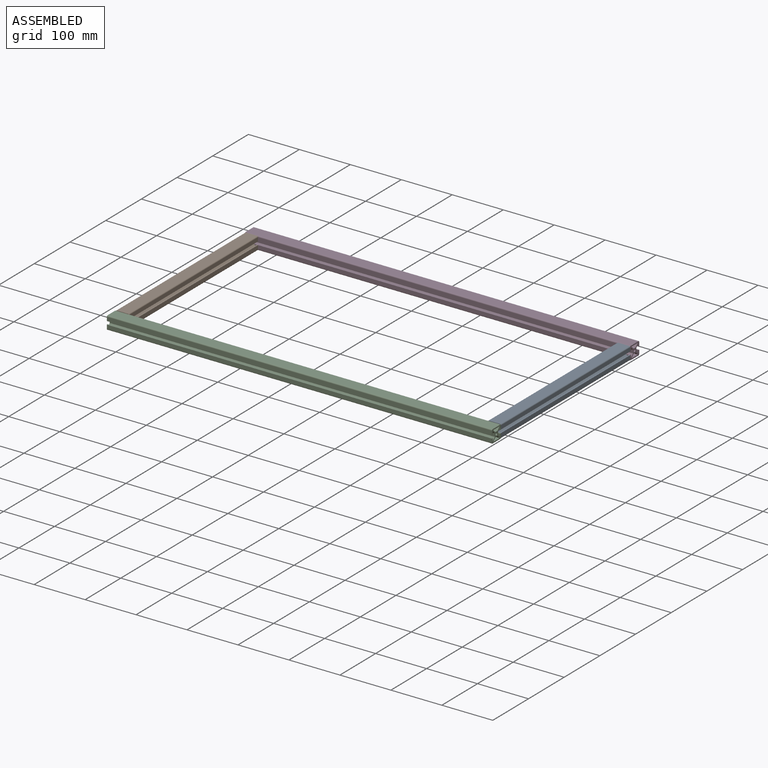
[diagram: assembled view]
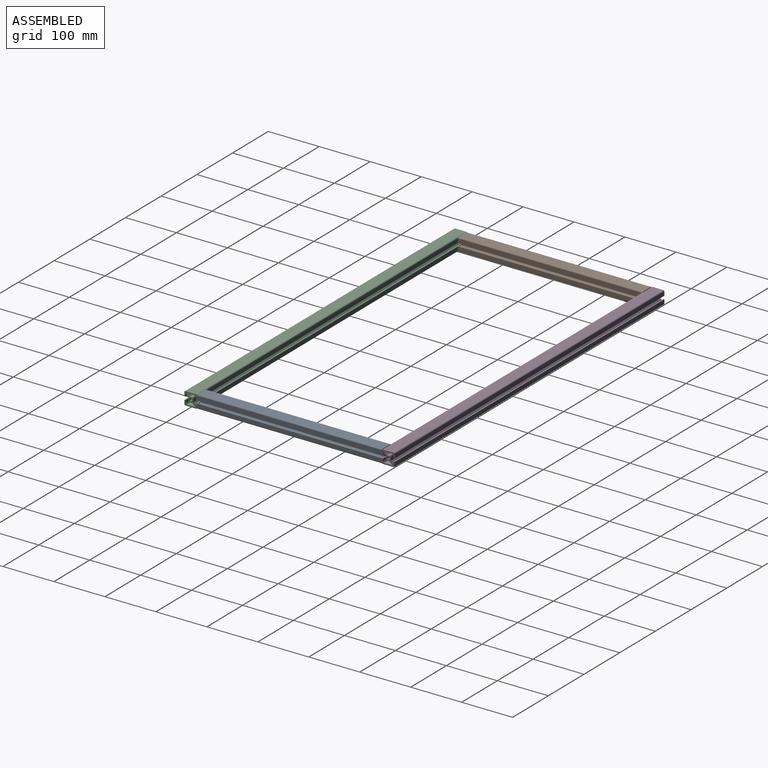
[diagram: assembled view, second angle]
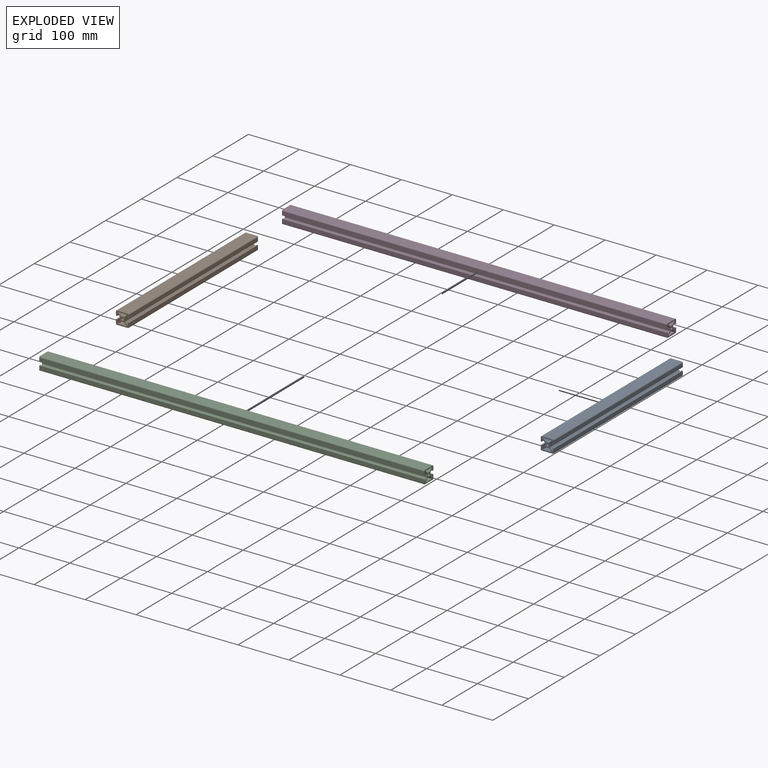
[diagram: exploded view]
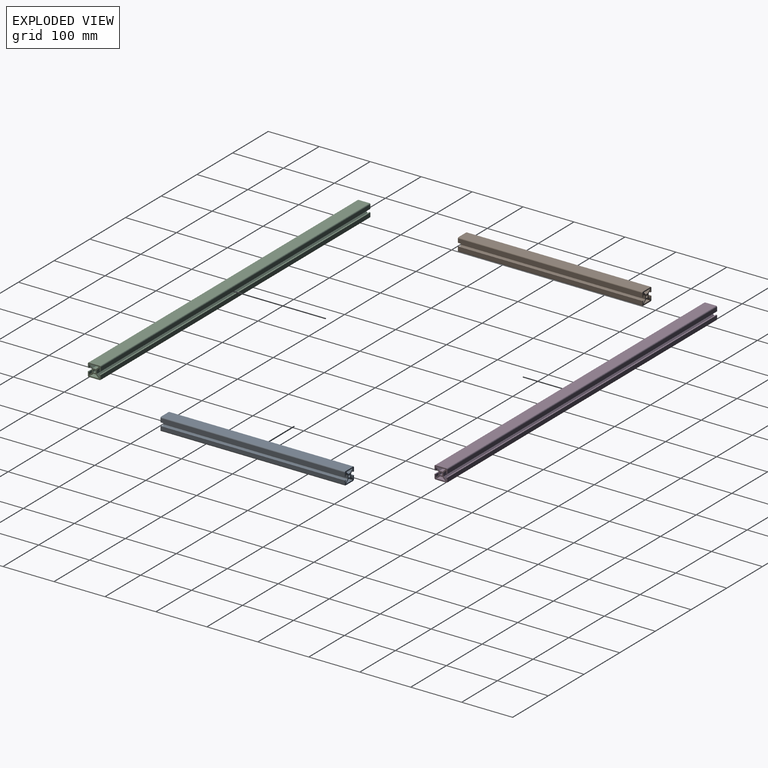
[diagram: exploded view, second angle]
ASSEMBLY  parts=4 mates=9
PART A: 35 faces, bbox 25.4x25.4x362 mm
  f0: plane 361.95x21.34mm, normal (1,0,0), area 7722.6mm2, adj f2,f28,f32,f34
  f1: plane 361.95x17.6mm, normal (-1,0,0), area 6370.8mm2, adj f2,f5,f24,f34
  f2: plane 25.4x25.4mm, normal (0,0,-1), area 321.8mm2, adj f0,f1,f3,f4,f5,f6,f7,f8
  f3: plane 361.95x2.34mm, normal (-1,0,0), area 845.8mm2, adj f2,f23,f27,f34
  f4: plane 361.95x6.37mm, normal (1,0,0), area 2307.2mm2, adj f2,f5,f24,f34
  f5: plane 361.95x5.61mm, normal (0.71,-0.71,0), area 2873.4mm2, adj f1,f2,f4,f34
  f6: cylinder r=2.55mm len=361.95mm, axis (0,0,1), area 5805.3mm2, adj f2,f34
  f7: plane 361.95x5.61mm, normal (0.71,0.71,0), area 2873.4mm2, adj f2,f16,f30,f34
  f8: plane 361.95x6.37mm, normal (-1,0,0), area 2307.2mm2, adj f2,f13,f26,f34
  f9: plane 361.95x2.34mm, normal (1,0,0), area 845.8mm2, adj f2,f14,f30,f34
  f10: plane 361.95x17.6mm, normal (1,0,0), area 6370.8mm2, adj f2,f13,f26,f34
  f11: cylinder r=2.03mm len=361.95mm, axis (0,0,1), area 1155.3mm2, adj f2,f14,f15,f34
  f12: cylinder r=2.03mm len=361.95mm, axis (0,0,1), area 1155.3mm2, adj f2,f15,f19,f34
  f13: plane 361.95x5.61mm, normal (-0.71,0.71,0), area 2873.4mm2, adj f2,f8,f10,f34
  f14: plane 361.95x7.44mm, normal (0,1,0), area 2693.7mm2, adj f2,f9,f11,f34
  f15: plane 361.95x21.34mm, normal (-1,0,0), area 7722.6mm2, adj f2,f11,f12,f34
  f16: plane 361.95x6.37mm, normal (0,1,0), area 2307.2mm2, adj f2,f7,f20,f34
  f17: plane 361.95x7.44mm, normal (0,-1,0), area 2693.7mm2, adj f2,f21,f32,f34
  f18: plane 361.95x2.34mm, normal (1,0,0), area 845.8mm2, adj f2,f19,f31,f34
  f19: plane 361.95x7.44mm, normal (0,-1,0), area 2693.7mm2, adj f2,f12,f18,f34
  f20: plane 361.95x5.61mm, normal (-0.71,0.71,0), area 2873.4mm2, adj f2,f16,f23,f34
  f21: plane 361.95x2.34mm, normal (-1,0,0), area 845.8mm2, adj f2,f17,f22,f34
  f22: plane 361.95x5.58mm, normal (0,1,0), area 2017.8mm2, adj f2,f21,f25,f34
  f23: plane 361.95x5.58mm, normal (0,-1,0), area 2017.8mm2, adj f2,f3,f20,f34
  f24: plane 361.95x5.61mm, normal (0.71,0.71,0), area 2873.4mm2, adj f1,f2,f4,f34
  f25: plane 361.95x5.61mm, normal (-0.71,-0.71,0), area 2873.4mm2, adj f2,f22,f29,f34
  f26: plane 361.95x5.61mm, normal (-0.71,-0.71,0), area 2873.4mm2, adj f2,f8,f10,f34
  f27: plane 361.95x7.44mm, normal (0,1,0), area 2693.7mm2, adj f2,f3,f28,f34
  f28: cylinder r=2.03mm len=361.95mm, axis (0,0,1), area 1155.3mm2, adj f0,f2,f27,f34
  f29: plane 361.95x6.37mm, normal (0,-1,0), area 2307.2mm2, adj f2,f25,f33,f34
  f30: plane 361.95x5.58mm, normal (0,-1,0), area 2017.8mm2, adj f2,f7,f9,f34
  f31: plane 361.95x5.58mm, normal (0,1,0), area 2017.8mm2, adj f2,f18,f33,f34
  f32: cylinder r=2.03mm len=361.95mm, axis (0,0,1), area 1155.3mm2, adj f0,f2,f17,f34
  f33: plane 361.95x5.61mm, normal (0.71,-0.71,0), area 2873.4mm2, adj f2,f29,f31,f34
  f34: plane 25.4x25.4mm, normal (0,0,1), area 321.8mm2, adj f0,f1,f3,f4,f5,f6,f7,f8
PART B: same geometry as A
PART C: 35 faces, bbox 25.4x25.4x755.7 mm
  f0: plane 755.65x21.34mm, normal (1,0,0), area 16122.5mm2, adj f2,f28,f32,f34
  f1: plane 755.65x17.6mm, normal (-1,0,0), area 13300.4mm2, adj f2,f5,f24,f34
  f2: plane 25.4x25.4mm, normal (0,0,-1), area 321.8mm2, adj f0,f1,f3,f4,f5,f6,f7,f8
  f3: plane 755.65x2.34mm, normal (-1,0,0), area 1765.8mm2, adj f2,f23,f27,f34
  f4: plane 755.65x6.37mm, normal (1,0,0), area 4816.9mm2, adj f2,f5,f24,f34
  f5: plane 755.65x5.61mm, normal (0.71,-0.71,0), area 5998.8mm2, adj f1,f2,f4,f34
  f6: cylinder r=2.55mm len=755.65mm, axis (0,0,1), area 12119.9mm2, adj f2,f34
  f7: plane 755.65x5.61mm, normal (0.71,0.71,0), area 5998.8mm2, adj f2,f16,f30,f34
  f8: plane 755.65x6.37mm, normal (-1,0,0), area 4816.9mm2, adj f2,f13,f26,f34
  f9: plane 755.65x2.34mm, normal (1,0,0), area 1765.8mm2, adj f2,f14,f30,f34
  f10: plane 755.65x17.6mm, normal (1,0,0), area 13300.4mm2, adj f2,f13,f26,f34
  f11: cylinder r=2.03mm len=755.65mm, axis (0,0,1), area 2411.9mm2, adj f2,f14,f15,f34
  f12: cylinder r=2.03mm len=755.65mm, axis (0,0,1), area 2411.9mm2, adj f2,f15,f19,f34
  f13: plane 755.65x5.61mm, normal (-0.71,0.71,0), area 5998.8mm2, adj f2,f8,f10,f34
  f14: plane 755.65x7.44mm, normal (0,1,0), area 5623.7mm2, adj f2,f9,f11,f34
  f15: plane 755.65x21.34mm, normal (-1,0,0), area 16122.5mm2, adj f2,f11,f12,f34
  f16: plane 755.65x6.37mm, normal (0,1,0), area 4816.9mm2, adj f2,f7,f20,f34
  f17: plane 755.65x7.44mm, normal (0,-1,0), area 5623.7mm2, adj f2,f21,f32,f34
  f18: plane 755.65x2.34mm, normal (1,0,0), area 1765.8mm2, adj f2,f19,f31,f34
  f19: plane 755.65x7.44mm, normal (0,-1,0), area 5623.7mm2, adj f2,f12,f18,f34
  f20: plane 755.65x5.61mm, normal (-0.71,0.71,0), area 5998.8mm2, adj f2,f16,f23,f34
  f21: plane 755.65x2.34mm, normal (-1,0,0), area 1765.8mm2, adj f2,f17,f22,f34
  f22: plane 755.65x5.58mm, normal (0,1,0), area 4212.6mm2, adj f2,f21,f25,f34
  f23: plane 755.65x5.58mm, normal (0,-1,0), area 4212.6mm2, adj f2,f3,f20,f34
  f24: plane 755.65x5.61mm, normal (0.71,0.71,0), area 5998.8mm2, adj f1,f2,f4,f34
  f25: plane 755.65x5.61mm, normal (-0.71,-0.71,0), area 5998.8mm2, adj f2,f22,f29,f34
  f26: plane 755.65x5.61mm, normal (-0.71,-0.71,0), area 5998.8mm2, adj f2,f8,f10,f34
  f27: plane 755.65x7.44mm, normal (0,1,0), area 5623.7mm2, adj f2,f3,f28,f34
  f28: cylinder r=2.03mm len=755.65mm, axis (0,0,1), area 2411.9mm2, adj f0,f2,f27,f34
  f29: plane 755.65x6.37mm, normal (0,-1,0), area 4816.9mm2, adj f2,f25,f33,f34
  f30: plane 755.65x5.58mm, normal (0,-1,0), area 4212.6mm2, adj f2,f7,f9,f34
  f31: plane 755.65x5.58mm, normal (0,1,0), area 4212.6mm2, adj f2,f18,f33,f34
  f32: cylinder r=2.03mm len=755.65mm, axis (0,0,1), area 2411.9mm2, adj f0,f2,f17,f34
  f33: plane 755.65x5.61mm, normal (0.71,-0.71,0), area 5998.8mm2, adj f2,f29,f31,f34
  f34: plane 25.4x25.4mm, normal (0,0,1), area 321.8mm2, adj f0,f1,f3,f4,f5,f6,f7,f8
PART D: same geometry as C
PLACE A rot(axis=(0.58,0.58,-0.58),120deg) t=(-163.01,802.61,366.55)mm
PLACE B rot(axis=(0.58,0.58,-0.58),120deg) t=(-893.26,802.61,366.55)mm
PLACE C rot(axis=(0,1,0),90deg) t=(-880.56,453.36,366.55)mm
PLACE D rot(axis=(0,1,0),90deg) t=(-880.56,840.71,366.55)mm
MATE planar A.f0 <-> C.f0  axis (0,0,-1) through (-152.34,466.06,353.85)mm
MATE planar A.f2 <-> D.f19  axis (0,1,0) through (-167.75,828.01,369.74)mm
MATE planar C.f0 <-> B.f0  axis (0,0,-1) through (-528.13,453.36,353.85)mm
MATE planar A.f14 <-> C.f34  axis (1,0,0) through (-150.31,466.06,377.22)mm
MATE planar C.f2 <-> B.f19  axis (-1,0,0) through (-905.96,458.11,366.55)mm
MATE planar D.f34 <-> A.f14  axis (1,0,0) through (-150.31,848.26,360.56)mm
MATE planar B.f12 <-> C.f27  axis (0,-1,0) through (-903.92,466.06,377.22)mm
MATE planar A.f34 <-> C.f14  axis (0,-1,0) through (-159.82,466.06,361.8)mm
MATE planar D.f15 <-> A.f15  axis (0,0,1) through (-150.31,840.71,379.25)mm
